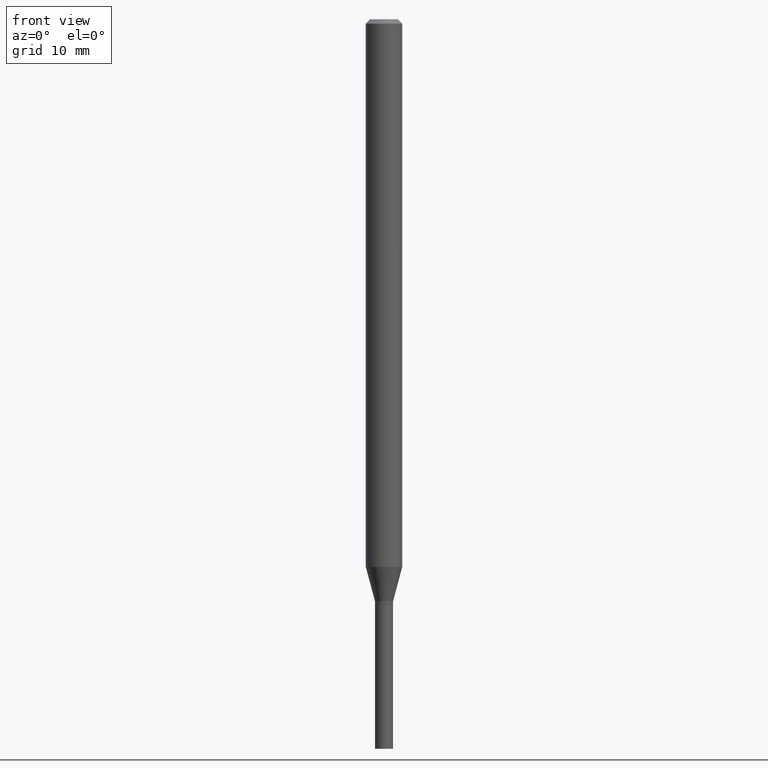
[diagram: clean part render]
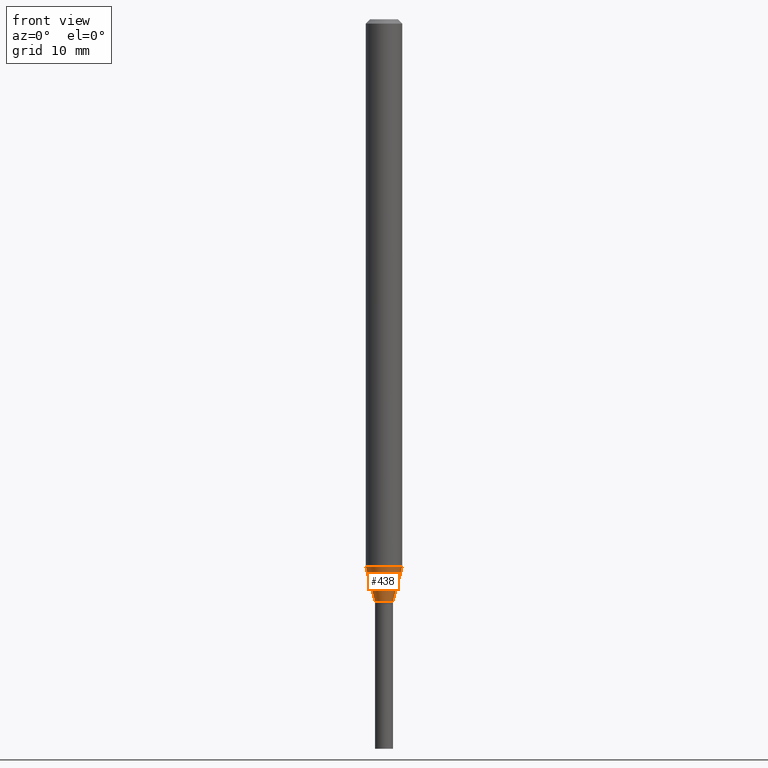
[diagram: same view with one face highlighted and labeled with its STEP entity id]
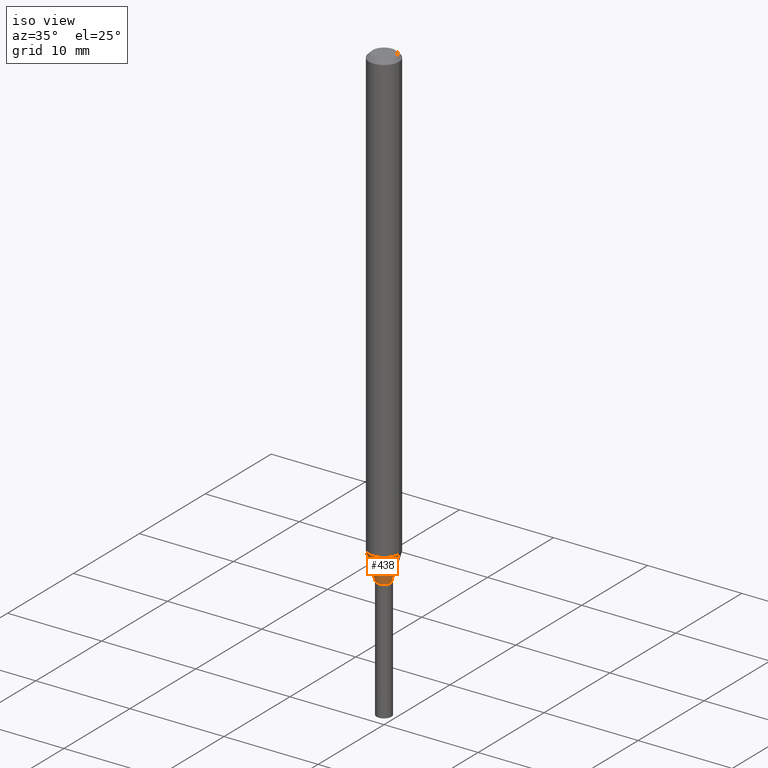
[diagram: same view with one face highlighted and labeled with its STEP entity id]
A machine part, front view. The second image highlights one B-rep face of the part: STEP entity #438.
A second angle (iso view) of the same face is appended — the face is thin or edge-on in the first view.
In plain terms, the highlighted conical surface has half-angle 15 deg.
Its self-contained STEP definition (entity closure, byte-faithful):
#19 = AXIS2_PLACEMENT_3D ( 'NONE', #158, #88, #271 ) ;
#22 = EDGE_CURVE ( 'NONE', #80, #46, #54, .T. ) ;
#26 = AXIS2_PLACEMENT_3D ( 'NONE', #237, #129, #95 ) ;
#46 = VERTEX_POINT ( 'NONE', #174 ) ;
#54 = CIRCLE ( 'NONE', #19, 0.03100000000000019060 ) ;
#55 = CARTESIAN_POINT ( 'NONE',  ( -0.06250000000000000000, -6.107467428670576391E-15, -1.876440399561581707 ) ) ;
#79 = CARTESIAN_POINT ( 'NONE',  ( 4.876264799533162378E-29, -6.962013789653233122E-15, -1.993999999999999995 ) ) ;
#80 = VERTEX_POINT ( 'NONE', #351 ) ;
#82 = EDGE_CURVE ( 'NONE', #46, #453, #457, .T. ) ;
#85 = VERTEX_POINT ( 'NONE', #55 ) ;
#88 = DIRECTION ( 'NONE',  ( -2.445468806185136597E-29, 3.491481338843145583E-15, 1.000000000000000000 ) ) ;
#95 = DIRECTION ( 'NONE',  ( 1.000000000000000000, -6.982962677686262766E-15, 0.000000000000000000 ) ) ;
#115 = DIRECTION ( 'NONE',  ( -2.445468806185136597E-29, 3.491481338843145583E-15, 1.000000000000000000 ) ) ;
#129 = DIRECTION ( 'NONE',  ( -2.445468806185136597E-29, 3.491481338843145583E-15, 1.000000000000000000 ) ) ;
#138 = LINE ( 'NONE', #175, #424 ) ;
#144 = EDGE_CURVE ( 'NONE', #85, #453, #348, .T. ) ;
#157 = CARTESIAN_POINT ( 'NONE',  ( 0.06250000000000000000, -6.987991805876030676E-15, -1.876440399561581707 ) ) ;
#158 = CARTESIAN_POINT ( 'NONE',  ( 4.876264799533162378E-29, -6.962013789653233122E-15, -1.993999999999999995 ) ) ;
#174 = CARTESIAN_POINT ( 'NONE',  ( 0.03100000000000019060, -7.178485632661508242E-15, -1.993999999999999995 ) ) ;
#175 = CARTESIAN_POINT ( 'NONE',  ( -0.03100000000000019060, -6.741745541567601080E-15, -1.993999999999999995 ) ) ;
#202 = VECTOR ( 'NONE', #464, 39.37007874015748854 ) ;
#203 = CONICAL_SURFACE ( 'NONE', #392, 0.03100000000000019060, 0.2617993877991507956 ) ;
#232 = ORIENTED_EDGE ( 'NONE', *, *, #22, .T. ) ;
#237 = CARTESIAN_POINT ( 'NONE',  ( 4.588776463793421999E-29, -6.551556638520639007E-15, -1.876440399561581707 ) ) ;
#262 = FACE_OUTER_BOUND ( 'NONE', #371, .T. ) ;
#265 = DIRECTION ( 'NONE',  ( 1.000000000000000000, -6.982962677686258033E-15, 0.000000000000000000 ) ) ;
#271 = DIRECTION ( 'NONE',  ( 1.000000000000000000, -6.982962677686258033E-15, 0.000000000000000000 ) ) ;
#311 = EDGE_CURVE ( 'NONE', #80, #85, #138, .T. ) ;
#328 = ORIENTED_EDGE ( 'NONE', *, *, #144, .F. ) ;
#348 = CIRCLE ( 'NONE', #26, 0.06250000000000000000 ) ;
#351 = CARTESIAN_POINT ( 'NONE',  ( -0.03100000000000019060, -6.424606485119088736E-15, -1.993999999999999995 ) ) ;
#366 = DIRECTION ( 'NONE',  ( -0.2588190451025220162, 5.211531920934554197E-15, 0.9659258262890678681 ) ) ;
#371 = EDGE_LOOP ( 'NONE', ( #398, #232, #415, #328 ) ) ;
#392 = AXIS2_PLACEMENT_3D ( 'NONE', #79, #115, #265 ) ;
#398 = ORIENTED_EDGE ( 'NONE', *, *, #311, .F. ) ;
#415 = ORIENTED_EDGE ( 'NONE', *, *, #82, .T. ) ;
#424 = VECTOR ( 'NONE', #366, 39.37007874015748854 ) ;
#425 = CARTESIAN_POINT ( 'NONE',  ( 0.03100000000000019060, -7.178485632661508242E-15, -1.993999999999999995 ) ) ;
#438 = ADVANCED_FACE ( 'NONE', ( #262 ), #203, .T. ) ;
#453 = VERTEX_POINT ( 'NONE', #157 ) ;
#457 = LINE ( 'NONE', #425, #202 ) ;
#464 = DIRECTION ( 'NONE',  ( 0.2588190451025220162, 1.565188264969616248E-15, 0.9659258262890678681 ) ) ;